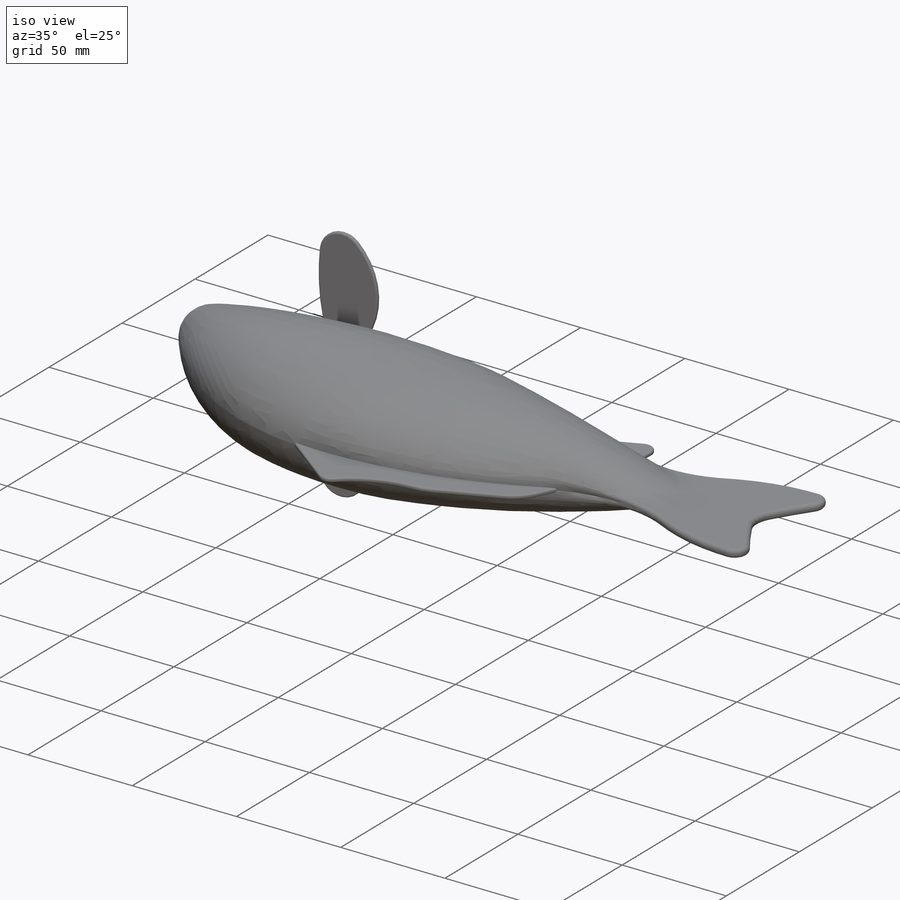
[diagram: iso view]
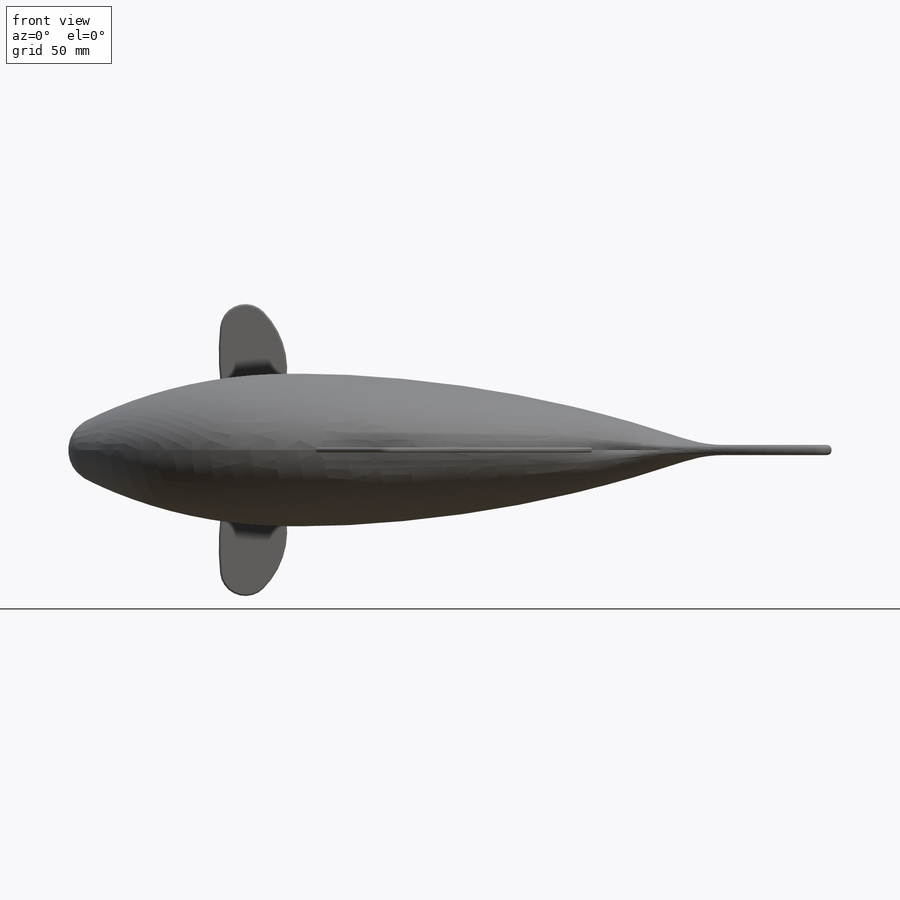
[diagram: front view]
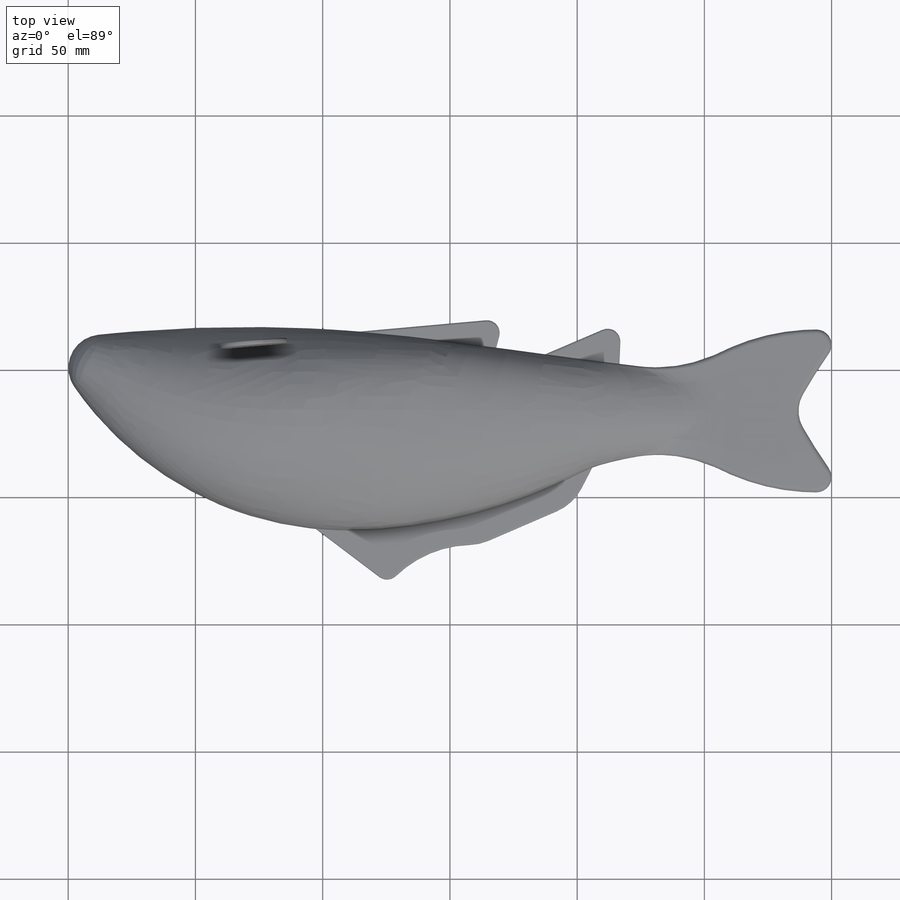
[diagram: top view]
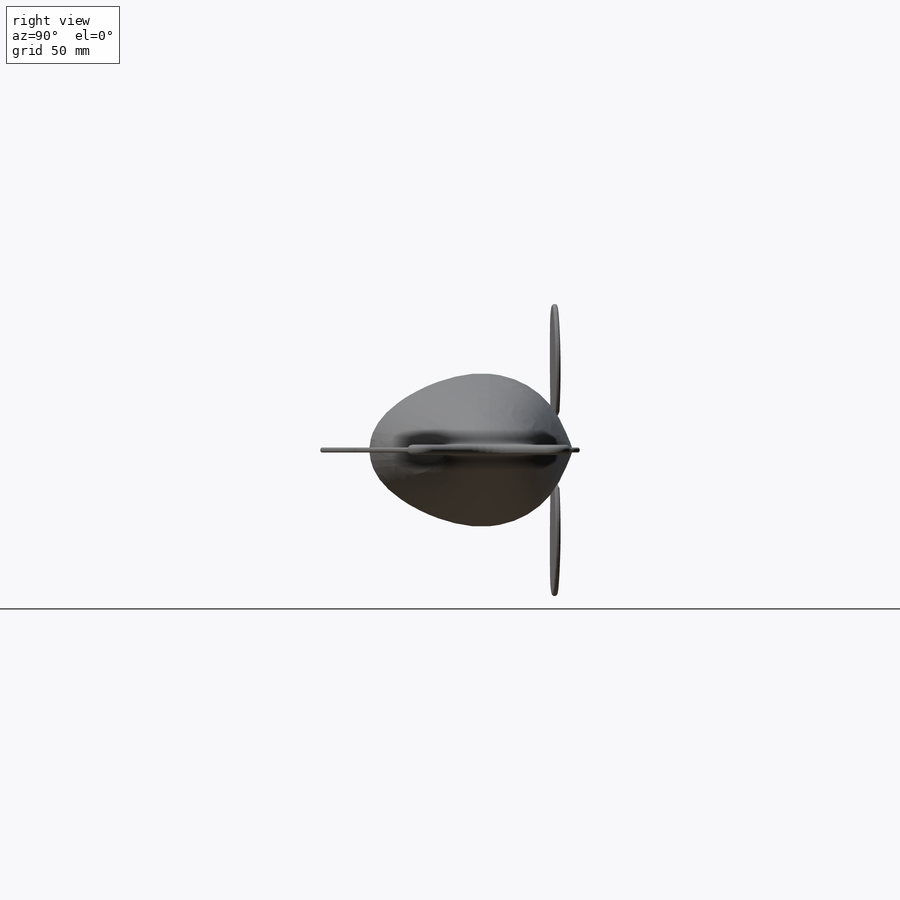
[diagram: right view]
SOLIDWORKS PART (.sldprt)
format: sldprt  version: not decoded by parser v0  size: 2,355,712 bytes
history: native  units: mm
features: sketch x12, plane x8, extrude x5, fillet x5, cut_extrude x2, move_body x2, material x1, revolve x1, delete_body x1, boolean_combine x1, mirror x1 + 2 further entries (+12 scaffold rows collapsed; 6 parser-record rows omitted)
feature tree (59):
  scaffold x12  (default folders/planes/origin — collapsed)
  material  "材料 <未指定>"
  "ｻｰﾌｪｽ ﾎﾞﾃﾞｨ"
  "ｿﾘｯﾄﾞ ﾎﾞﾃﾞｨ"
  plane  "正面"
  plane  "平面"
  plane  "右側面"
  sketch  "Model"
  sketch  "ｽｹｯﾁ3"
  parser-record x6  (decoder bookkeeping rows leaked as tree rows — omitted from the tree; the rows remain in map.json)
  extrude  "ﾎﾞｽ - 押し出し1"  Depth=50mm
  plane  "平面 分割ラインのため"
  plane  "平面　分割ラインのため"
  sketch  "ｽｹｯﾁ7"
  revolve  "回転1"  Angle=90deg
  plane  "平面2"
  sketch  "ｽｹｯﾁ8"
  cut_extrude  "ｶｯﾄ - 押し出し1"  [1 undecoded]
  sketch  "ｽｹｯﾁ4"  dims[D1=50.0mm]
  extrude  "ﾎﾞｽ - 押し出し7"  Depth=80mm
  sketch  "ｽｹｯﾁ15"  dims[c1.D1=150.0mm c1.D2=~42.990209mm c2.D2=25.0deg c2.D5=100.0mm c2.D6=1.0mm c2.D7=5.0mm]
  sketch  "ｽｹｯﾁ17"  dims[D1=26.0mm]
  cut_extrude  "ｶｯﾄ - 押し出し3"  [1 undecoded]
  plane  "平面5"
  plane  "平面6"
  sketch  "ｽｹｯﾁ14"
  extrude  "ﾎﾞｽ - 押し出し6"  Depth=2mm
  fillet  "ﾌｨﾚｯﾄ5"  Radius=1.8mm
  sketch  "ｽｹｯﾁ2"
  sketch  "3Dｽｹｯﾁ5"
  sketch  "境界 後半身"
  extrude  "ﾎﾞｽ - 押し出し8"  Depth=2mm
  move_body  "ﾎﾞﾃﾞｨ-移動/ｺﾋﾟｰ1"
  move_body  "ﾎﾞﾃﾞｨ-移動/ｺﾋﾟｰ2"
  extrude  "ﾎﾞｽ - 押し出し9"  [1 undecoded]
  sketch  "ｽｹｯﾁ3<7>"  dims[D1=1.0mm]
  fillet  "ﾌｨﾚｯﾄ4"  Radius=0.8mm
  fillet  "ﾌｨﾚｯﾄ1"  Radius=0.8mm
  fillet  "ﾌｨﾚｯﾄ2"  Radius=0.8mm
  fillet  "ﾌｨﾚｯﾄ3"  Radius=0.8mm
  delete_body  "ﾎﾞﾃﾞｨ-削除 不要なソリッド"
  boolean_combine  "組み合わせ1"
  mirror  "ﾐﾗｰ1"
decode coverage: 14 of 30 modeling features carry decoded parameters; 2 rows unclassified (native names shown)
note: ~ marks probable driven/reference dimensions
note: 3 parameter values undecoded
summary: no parameter record found for 3 features
note: suppression state not decoded; provenance and decode notes live in map.json
